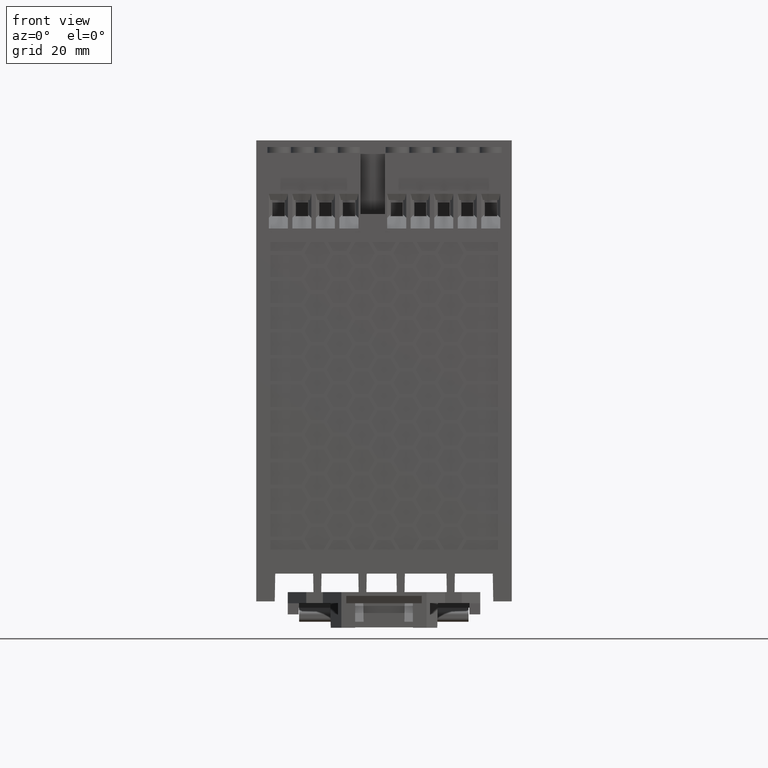
[diagram: clean part render]
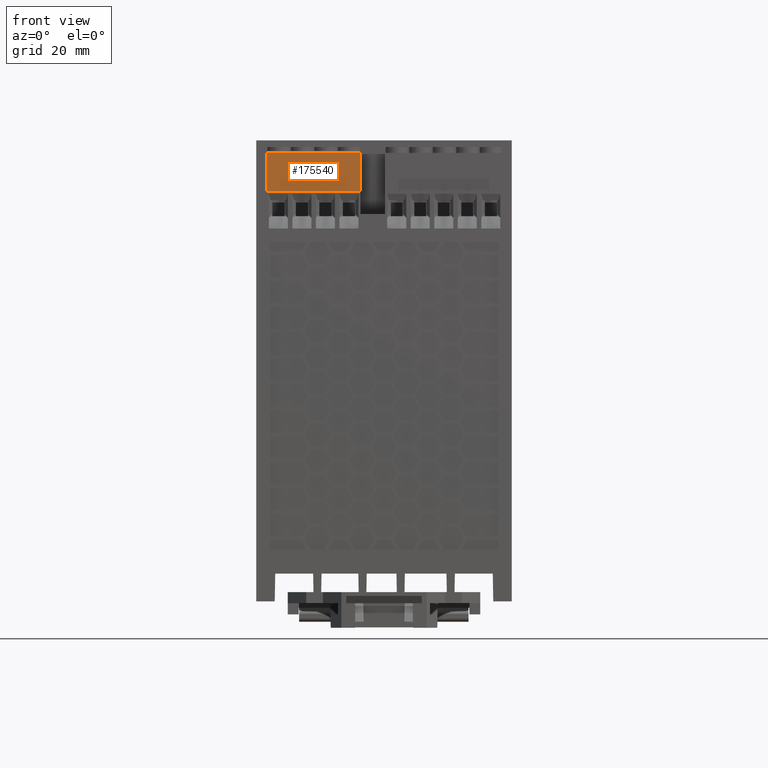
[diagram: same view with one face highlighted and labeled with its STEP entity id]
A machine part, front view. The second image highlights one B-rep face of the part: STEP entity #175540.
In plain terms, the highlighted planar face has unit normal (-0, 1, -0).
Its self-contained STEP definition (entity closure, byte-faithful):
#173850=CARTESIAN_POINT('',(52.401394177238,54.7377310902055,
166.040843060292));
#173860=VERTEX_POINT('',#173850);
#173890=CARTESIAN_POINT('',(52.401394177238,106.241068514579,
166.040843060292));
#173900=DIRECTION('',(1.66533453693772E-16,-1.,0.));
#173910=VECTOR('',#173900,1.);
#173920=LINE('',#173890,#173910);
#173930=CARTESIAN_POINT('',(52.401394177238,65.0877310902055,
166.040843060292));
#173940=VERTEX_POINT('',#173930);
#173950=EDGE_CURVE('',#173940,#173860,#173920,.T.);
#175240=CARTESIAN_POINT('',(52.401394177238,65.0877310902055,
197.787307527076));
#175250=DIRECTION('',(-1.,-1.66533453693772E-16,7.83959061356972E-17));
#175260=DIRECTION('',(-1.66533453693772E-16,1.,-3.46944695195361E-16));
#175270=AXIS2_PLACEMENT_3D('',#175240,#175250,#175260);
#175280=PLANE('',#175270);
#175290=CARTESIAN_POINT('',(52.401394177238,54.7377310902055,
109.156599293932));
#175300=DIRECTION('',(-7.83959061356971E-17,-3.46944695195361E-16,-1.));
#175310=VECTOR('',#175300,1.);
#175320=LINE('',#175290,#175310);
#175330=CARTESIAN_POINT('',(52.401394177238,54.7377310902055,
191.365843060292));
#175340=VERTEX_POINT('',#175330);
#175350=EDGE_CURVE('',#175340,#173860,#175320,.T.);
#175360=ORIENTED_EDGE('',*,*,#175350,.T.);
#175370=CARTESIAN_POINT('',(52.401394177238,110.141068479707,
191.365843060292));
#175380=DIRECTION('',(1.66533453693772E-16,-1.,0.));
#175390=VECTOR('',#175380,1.);
#175400=LINE('',#175370,#175390);
#175410=CARTESIAN_POINT('',(52.401394177238,65.0877310902055,
191.365843060292));
#175420=VERTEX_POINT('',#175410);
#175430=EDGE_CURVE('',#175420,#175340,#175400,.T.);
#175440=ORIENTED_EDGE('',*,*,#175430,.T.);
#175450=CARTESIAN_POINT('',(52.401394177238,65.0877310902055,
109.156599293932));
#175460=DIRECTION('',(-7.83959061356971E-17,-3.46944695195361E-16,-1.));
#175470=VECTOR('',#175460,1.);
#175480=LINE('',#175450,#175470);
#175490=EDGE_CURVE('',#175420,#173940,#175480,.T.);
#175500=ORIENTED_EDGE('',*,*,#175490,.F.);
#175510=ORIENTED_EDGE('',*,*,#173950,.F.);
#175520=EDGE_LOOP('',(#175510,#175500,#175440,#175360));
#175530=FACE_OUTER_BOUND('',#175520,.T.);
#175540=ADVANCED_FACE('',(#175530),#175280,.F.);